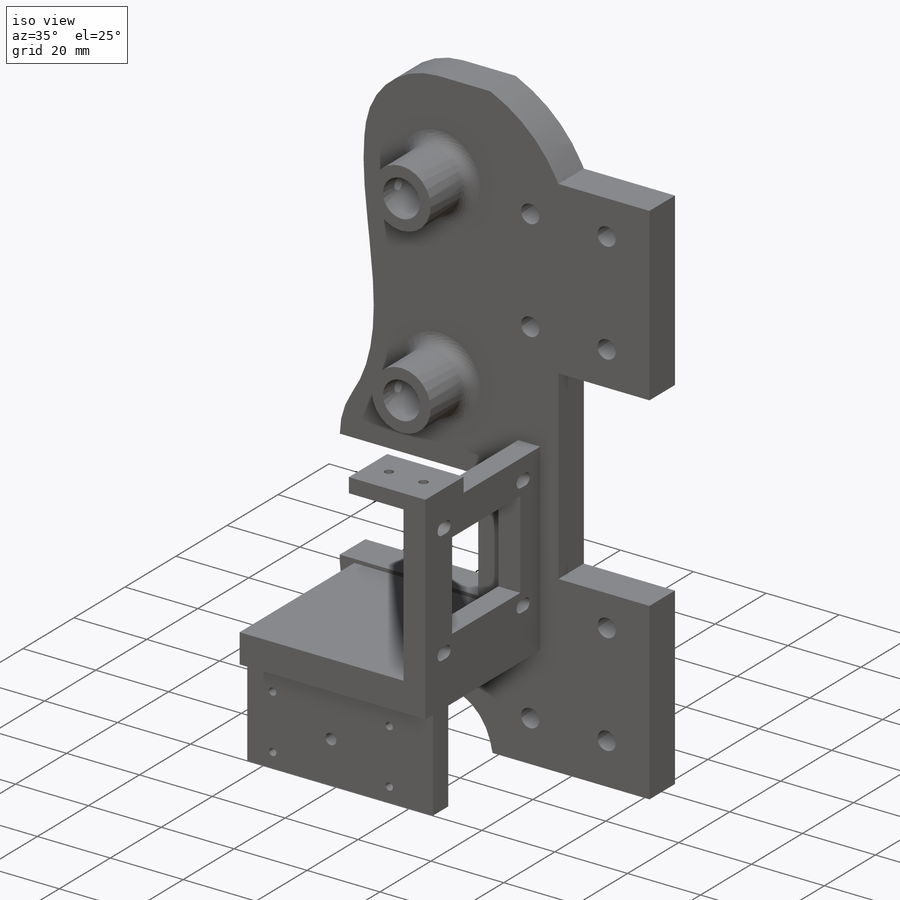
[diagram: iso view]
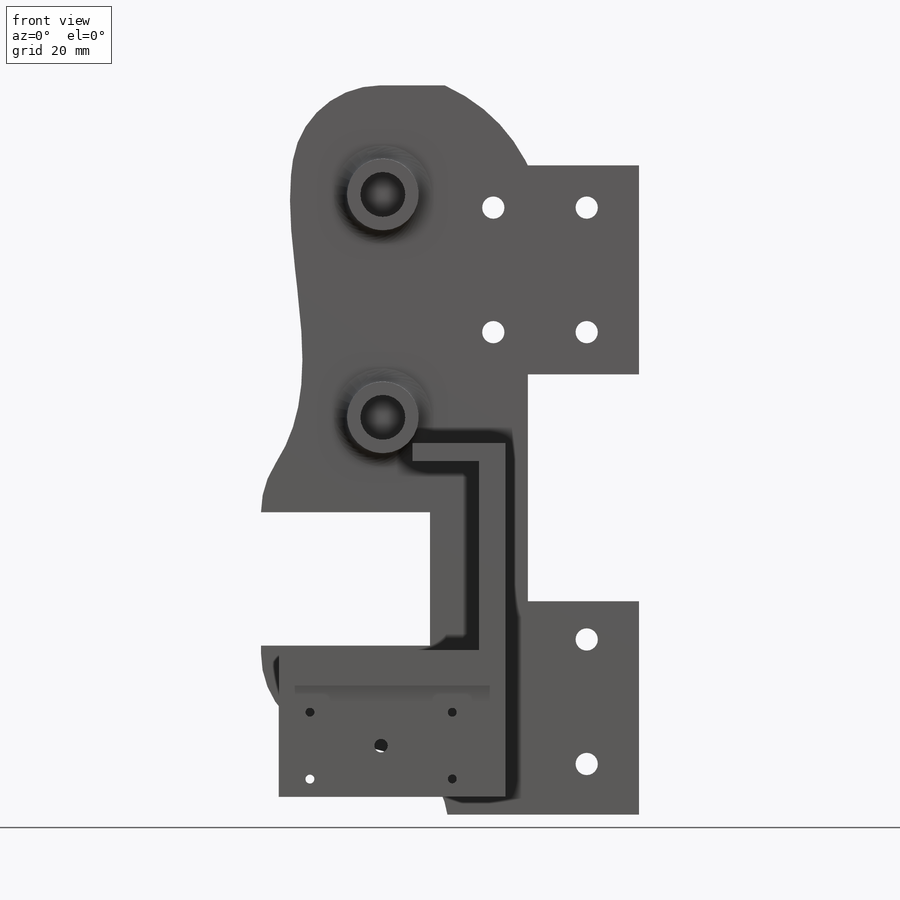
[diagram: front view]
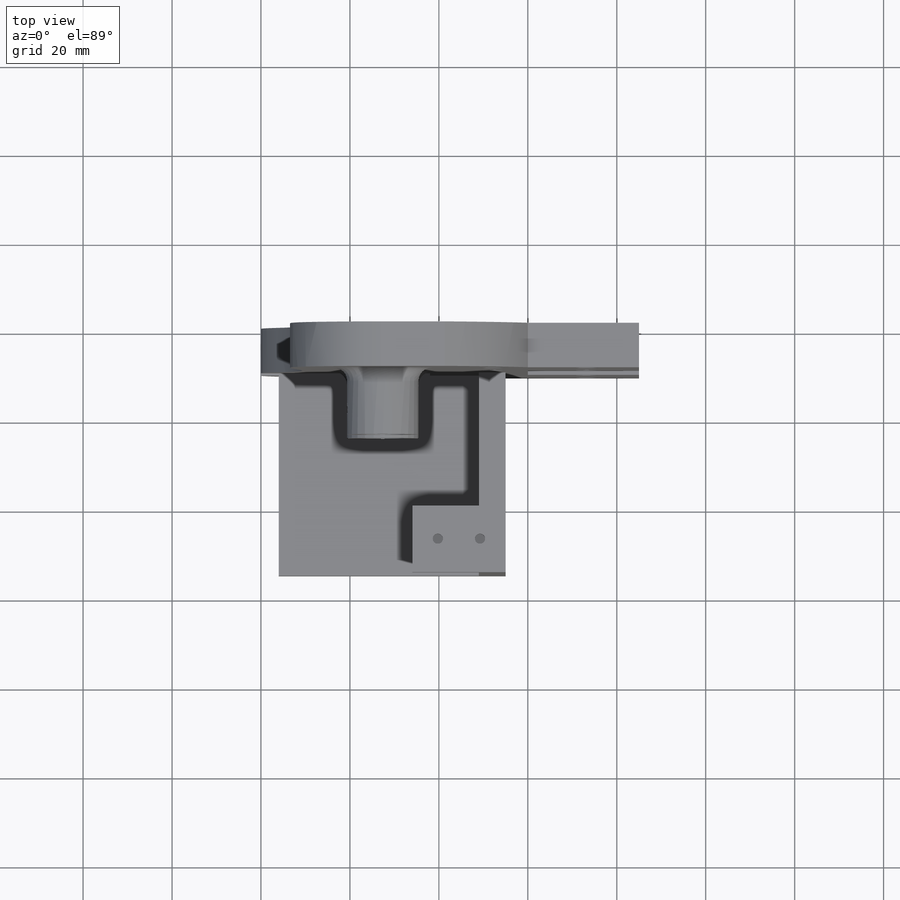
[diagram: top view]
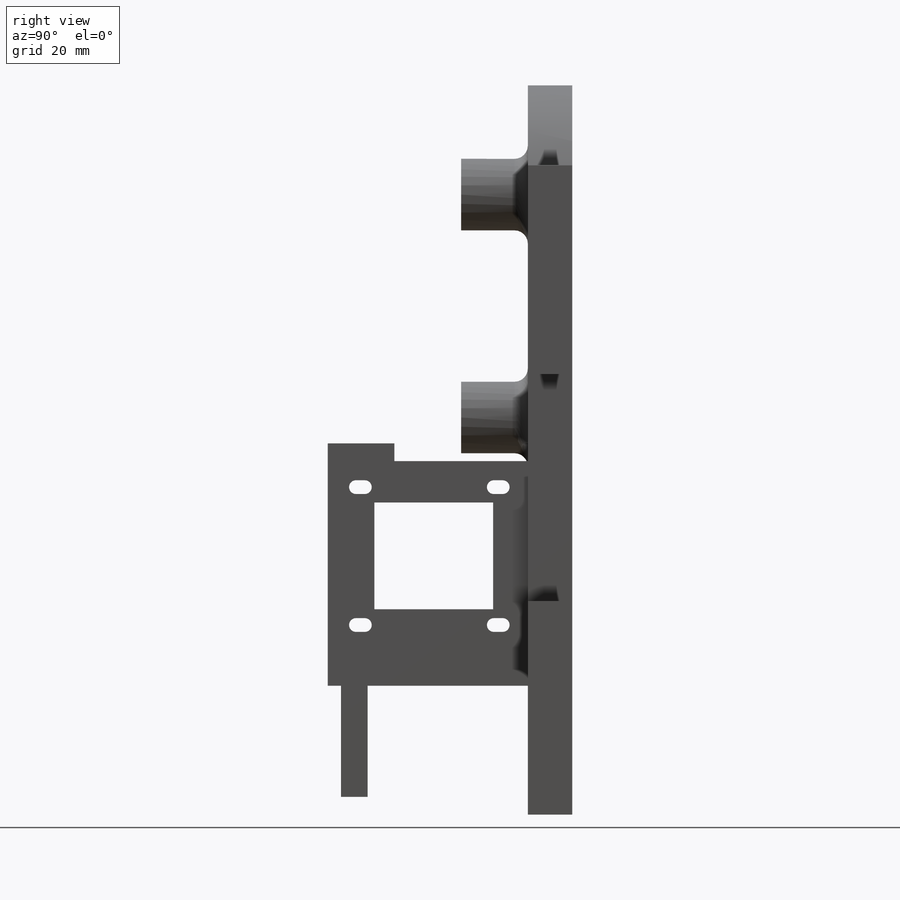
[diagram: right view]
SOLIDWORKS PART (.sldprt)
format: sldprt  version: not decoded by parser v0  size: 727,040 bytes
history: native  units: mm
features: sketch x22, cut_extrude x13, extrude x9, plane x8, fillet x2, mirror x2, material x1, chamfer x1 (+9 scaffold rows collapsed)
feature tree (67):
  scaffold x9  (default folders/planes/origin — collapsed)
  material  "Material <not specified>"
  plane  "Plan de face"
  plane  "Plan de dessus"
  plane  "Plan de droite"
  sketch  "Sketch1"  dims[D1=60.0mm D2=145.0mm]
  extrude  "Boss-Extrude1"  Depth=10mm
  sketch  "Sketch2"  dims[c1.D1=43.0mm c1.D2=6.0mm c1.D3=8.0mm c1.D4=45.0mm c1.D5=10.0mm c1.D6=5.0mm c1.D7=57.0mm c2.D1=42.5mm c2.D2=15.0mm c2.D8=6.5mm c3.D1=4.0mm c3.D7=42.5mm c3.D8=51.0mm]
  extrude  "Boss-Extrude2"  Depth=45mm
  sketch  "Sketch3"  dims[D1=10.0mm]
  extrude  "Boss-Extrude3"  Depth=20mm
  sketch  "Sketch4"  dims[D1=5.5mm D2=5.5mm]
  cut_extrude  "Cut-Extrude1"  [1 undecoded]
  plane  "Plane1"  Offset=5mm
  plane  "Plane2"
  sketch  "Sketch6"  dims[c1.D1=22.0mm c1.D2=30.0mm c1.D3=20.5mm c2.D2=25.35mm c2.D3=20.85mm c2.D1=26.7mm c3.D2=24.0mm c3.D3=17.2mm c3.D4=10.5mm]
  cut_extrude  "Cut-Extrude2"  [1 undecoded]
  sketch  "Sketch8"  dims[D1=2.3mm D2=2.3mm D3=9.5mm D4=7.5mm D5=8.3mm]
  cut_extrude  "Cut-Extrude3"  Depth=3mm
  sketch  "Sketch9"
  extrude  "Boss-Extrude4"  Depth=35mm
  sketch  "Sketch10"  dims[D1=15.5mm D2=15.5mm D3=25.0mm]
  extrude  "Boss-Extrude5"  Depth=65mm
  chamfer  "Chamfer1"  Distance=10mm Angle=45deg
  sketch  "Sketch12"  dims[c1.D1=6.0mm c1.D2=25.0mm c1.D3=~10.379074mm c1.D4=1.45mm c2.D3=2.98mm]
  extrude  "Boss-Extrude7"  [1 undecoded]
  sketch  "Sketch13"  dims[c1.D1=10.1mm c1.D4=~16.531402mm c1.D2=24.57mm c1.D3=32.61mm c2.D4=3.0mm]
  extrude  "Boss-Extrude8"  Depth=15mm
  fillet  "Fillet1"  Radius=3mm
  plane  "Plane3"  Offset=49.63mm
  plane  "Plane4"  Offset=32mm
  sketch  "Sketch15"  dims[D3=3.0mm D1=8.0mm D2=9.0mm]
  cut_extrude  "Cut-Extrude4"  [1 undecoded]
  mirror  "Mirror1"
  sketch  "Sketch17"  dims[D1=47.0mm D2=18.0mm]
  extrude  "Boss-Extrude9"  Depth=25mm
  sketch  "Sketch18"  dims[D1=48.0mm D2=16.0mm]
  extrude  "Boss-Extrude10"  Depth=25mm
  sketch  "Sketch19"  dims[D4=5.0mm D1=14.0mm D2=9.5mm D3=~11.761929mm D5=10.5mm]
  cut_extrude  "Cut-Extrude5"  [1 undecoded]
  plane  "Plane5"  Offset=72.05mm
  mirror  "Mirror2"
  sketch  "Sketch20"
  cut_extrude  "Cut-Extrude6"  [1 undecoded]
  sketch  "Sketch21"
  cut_extrude  "Cut-Extrude7"  [1 undecoded]
  sketch  "Sketch22"
  cut_extrude  "Cut-Extrude8"  [1 undecoded]
  fillet  "Fillet2"  Radius=20mm
  sketch  "Sketch23"
  cut_extrude  "Cut-Extrude9"  [1 undecoded]
  sketch  "Sketch24"  dims[c1.D3=3.0mm c1.D4=3.0mm c1.D5=3.0mm c1.D6=3.0mm c2.D3=1.5mm c2.D7=1.5mm c3.D3=1.55mm c3.D7=1.5mm c3.D4=1.55mm c3.D6=1.55mm c3.D9=1.55mm c4.D3=1.55mm c4.D4=1.55mm c4.D8=1.55mm c4.D12=1.55mm c4.D1=31.0mm c4.D2=31.0mm c4.D7=3.0mm c4.D5=4.0mm c5.D8=4.0mm c5.D10=4.0mm c5.D7=2.0mm c5.D11=1.0mm c5.D5=2.0mm c5.D6=1.0mm c5.D9=1.0mm c6.D10=2.0mm c6.D13=2.0mm c6.D14=1.0mm]
  cut_extrude  "Cut-Extrude10"  [1 undecoded]
  sketch  "Sketch26"  dims[D1=30.0mm]
  cut_extrude  "Cut-Extrude11"  [1 undecoded]
  sketch  "Sketch28"  dims[D1=38.0mm D2=30.0mm]
  cut_extrude  "Cut-Extrude12"  Depth=10mm
  sketch  "Sketch29"  dims[D1=2.0mm D2=3.0mm D3=2.0mm D4=2.0mm D5=2.0mm D6=32.0mm D7=15.0mm D8=32.0mm D9=4.0mm]
  cut_extrude  "Cut-Extrude13"  Depth=12mm
decode coverage: 31 of 49 modeling features carry decoded parameters
note: ~ marks probable driven/reference dimensions
note: 11 parameter values undecoded
summary: no parameter record found for 11 features
note: suppression state not decoded; provenance and decode notes live in map.json
